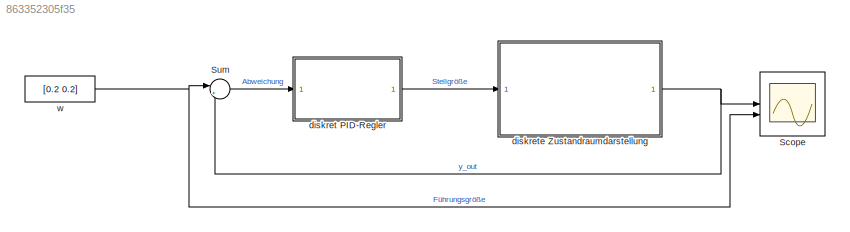
MODEL slx_863352305f35
KIND model
CONFIG AbsTol = auto
CONFIG EnableMultiTasking = off
CONFIG FixedStep = 1/30
CONFIG MaxStep = auto
CONFIG MinStep = auto
CONFIG RelTol = 1e-3
CONFIG SampleTimeConstraint = Unconstrained
CONFIG SolverName = FixedStepAuto
CONFIG StartTime = 0.0
CONFIG StopTime = 20
BLOCK [Scope] Scope
  Floating = off
  NumInputPorts = 2
  ScopeSpecificationString = Simulink.scopes.TimeScopeBlockCfg('CurrentConfiguration', extmgr.ConfigurationSet(extmgr.Configuration('Core','General UI',true,'FigureColor',[1 1 1]),extmgr.Configuration('Core','Source UI',true),extmgr.Configuration('Sources','WiredSimulink',true),extmgr.Configuration('Visuals','Time Domain',true,'PlotType','Line','SerializedDisplays',{struct('MinYLimReal','-0.03808','MaxYLimReal','0.34276','YLa...<+2183ch>
BLOCK [Sum] Sum
  Inputs = |+-
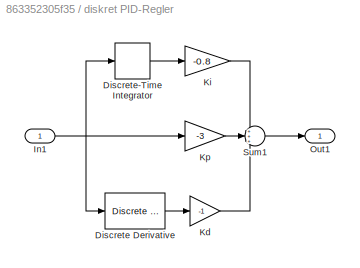
BLOCK [SubSystem] diskret PID-Regler
BLOCK [Reference] diskret PID-Regler/Discrete Derivative  REF=simulink/Discrete/Discrete Derivative
  SourceBlock = simulink/Discrete/Discrete Derivative
  SourceType = Discrete Derivative
BLOCK [DiscreteIntegrator] diskret PID-Regler/Discrete-Time Integrator
  ICPrevOutput = DiscIntNeverNeededParam
  ICPrevScaledInput = DiscIntNeverNeededParam
  InitialConditionSetting = Auto
  SampleTime = 1/30
BLOCK [Inport] diskret PID-Regler/In1
BLOCK [Gain] diskret PID-Regler/Kd
  Gain = -1
BLOCK [Gain] diskret PID-Regler/Ki
  Gain = -0.8
BLOCK [Gain] diskret PID-Regler/Kp
  Gain = -3
BLOCK [Outport] diskret PID-Regler/Out1
BLOCK [Sum] diskret PID-Regler/Sum1
  Inputs = +++
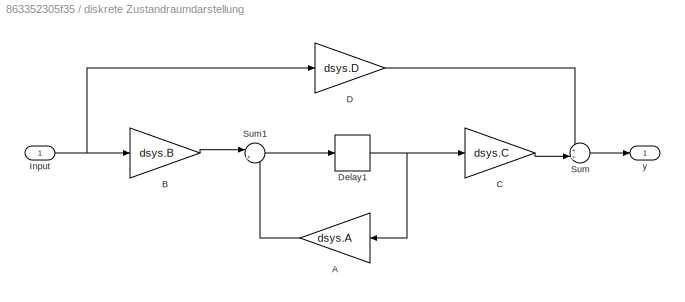
BLOCK [SubSystem] diskrete Zustandraumdarstellung
BLOCK [Gain] diskrete Zustandraumdarstellung/A
  Gain = dsys.A
  Multiplication = Matrix(K*u)
BLOCK [Gain] diskrete Zustandraumdarstellung/B
  Gain = dsys.B
  Multiplication = Matrix(K*u)
BLOCK [Gain] diskrete Zustandraumdarstellung/C
  Gain = dsys.C
  Multiplication = Matrix(K*u)
BLOCK [Gain] diskrete Zustandraumdarstellung/D
  Gain = dsys.D
  Multiplication = Matrix(K*u)
BLOCK [Delay] diskrete Zustandraumdarstellung/Delay1
  DelayLength = 1
  InitialCondition = 0
  InputPortMap = u0
BLOCK [Inport] diskrete Zustandraumdarstellung/Input
BLOCK [Sum] diskrete Zustandraumdarstellung/Sum
  Inputs = ++|
BLOCK [Sum] diskrete Zustandraumdarstellung/Sum1
  Inputs = |++
BLOCK [Outport] diskrete Zustandraumdarstellung/y
BLOCK [Constant] w
  Value = [0.2 0.2]
LINE Sum:1 -> diskret PID-Regler:1
LINE diskret PID-Regler/Discrete Derivative:1 -> diskret PID-Regler/Kd:1
LINE diskret PID-Regler/Discrete-Time Integrator:1 -> diskret PID-Regler/Ki:1
NET diskret PID-Regler/In1:1 -> diskret PID-Regler/Discrete Derivative:1, diskret PID-Regler/Discrete-Time Integrator:1, diskret PID-Regler/Kp:1
LINE diskret PID-Regler/Kd:1 -> diskret PID-Regler/Sum1:3
LINE diskret PID-Regler/Ki:1 -> diskret PID-Regler/Sum1:1
LINE diskret PID-Regler/Kp:1 -> diskret PID-Regler/Sum1:2
LINE diskret PID-Regler/Sum1:1 -> diskret PID-Regler/Out1:1
LINE diskret PID-Regler:1 -> diskrete Zustandraumdarstellung:1
LINE diskrete Zustandraumdarstellung/A:1 -> diskrete Zustandraumdarstellung/Sum1:2
LINE diskrete Zustandraumdarstellung/B:1 -> diskrete Zustandraumdarstellung/Sum1:1
LINE diskrete Zustandraumdarstellung/C:1 -> diskrete Zustandraumdarstellung/Sum:2
LINE diskrete Zustandraumdarstellung/D:1 -> diskrete Zustandraumdarstellung/Sum:1
NET diskrete Zustandraumdarstellung/Delay1:1 -> diskrete Zustandraumdarstellung/A:1, diskrete Zustandraumdarstellung/C:1
NET diskrete Zustandraumdarstellung/Input:1 -> diskrete Zustandraumdarstellung/B:1, diskrete Zustandraumdarstellung/D:1
LINE diskrete Zustandraumdarstellung/Sum1:1 -> diskrete Zustandraumdarstellung/Delay1:1
LINE diskrete Zustandraumdarstellung/Sum:1 -> diskrete Zustandraumdarstellung/y:1
NET diskrete Zustandraumdarstellung:1 -> Scope:1, Sum:2
NET w:1 -> Scope:2, Sum:1
note: NET lines group one-source signal fan-out (src -> all destinations, sorted); 1:1 wires keep LINE
